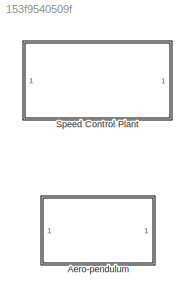
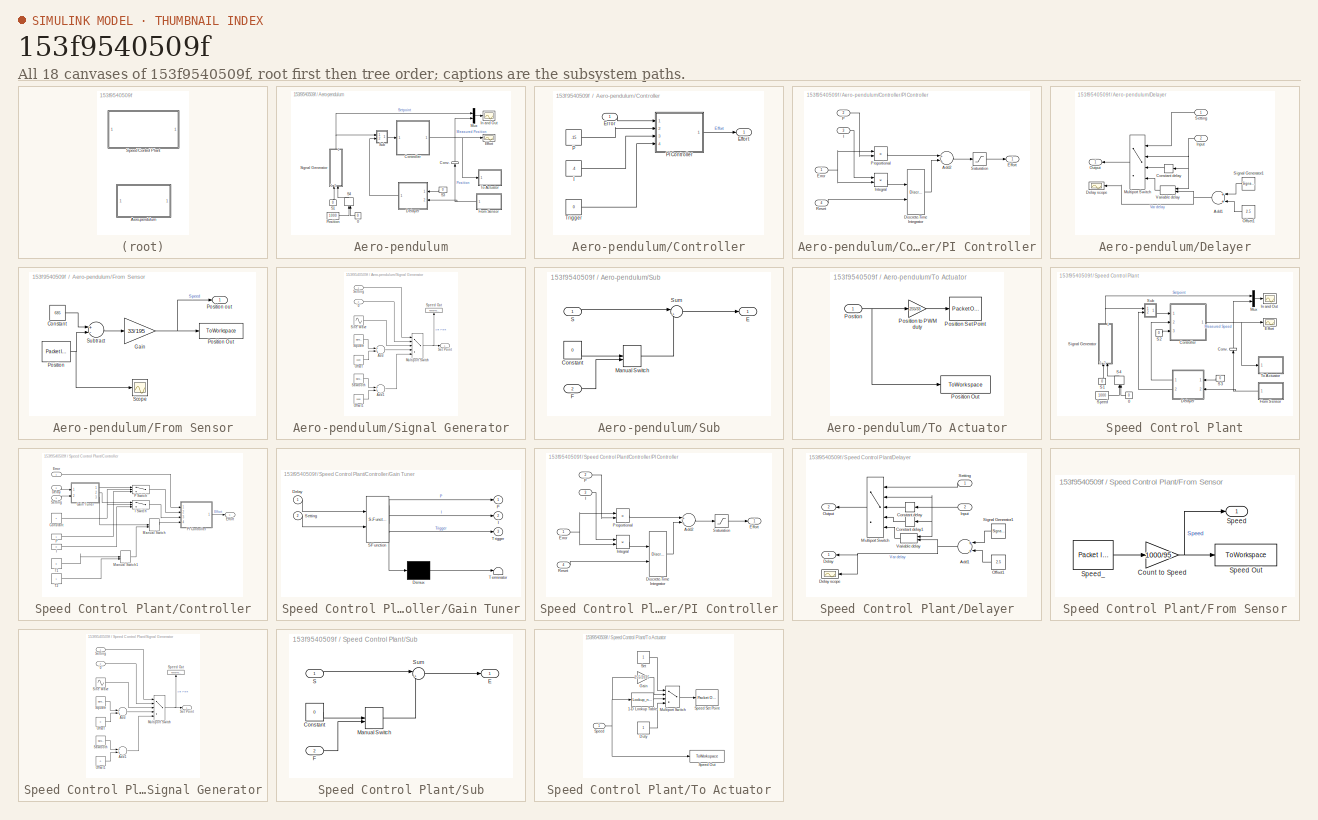
[diagram: thumbnail index - all 18 canvases of the model, root first then tree order]
MODEL slx_153f9540509f
KIND model
BLOCK [SubSystem] Aero-pendulum
  FunctionWithSeparateData = off
  MaskHideContents = off
  MinAlgLoopOccurrences = off
  Opaque = off
  Ports = []
  PropExecContextOutsideSubsystem = off
  RTWSystemCode = Auto
  RequestExecContextInheritance = off
BLOCK [Constant] Aero-pendulum/0
  Value = 0
BLOCK [SubSystem] Aero-pendulum/Controller
  FunctionWithSeparateData = off
  MaskHideContents = off
  MinAlgLoopOccurrences = off
  Opaque = off
  Ports = [1, 1]
  PropExecContextOutsideSubsystem = off
  RTWSystemCode = Auto
  RequestExecContextInheritance = off
BLOCK [Outport] Aero-pendulum/Controller/Effort
  IconDisplay = Port number
BLOCK [Inport] Aero-pendulum/Controller/Error
  IconDisplay = Port number
BLOCK [Constant] Aero-pendulum/Controller/I
  Value = .4
BLOCK [Constant] Aero-pendulum/Controller/P
  Value = .15
BLOCK [SubSystem] Aero-pendulum/Controller/PI Controller
  FunctionWithSeparateData = off
  MaskHideContents = off
  MinAlgLoopOccurrences = off
  Opaque = off
  Ports = [4, 1]
  PropExecContextOutsideSubsystem = off
  RTWSystemCode = Auto
  RequestExecContextInheritance = off
BLOCK [Sum] Aero-pendulum/Controller/PI Controller/Add2
  InputSameDT = off
  OutDataTypeStr = Inherit: Inherit via internal rule
  Ports = [2, 1]
  SampleTime = st_
  SaturateOnIntegerOverflow = off
BLOCK [DiscreteIntegrator] Aero-pendulum/Controller/PI Controller/Discrete-Time Integrator
  ExternalReset = falling
  ICPrevOutput = DiscIntNeverNeededParam
  ICPrevScaledInput = DiscIntNeverNeededParam
  Ports = [2, 1]
  SampleTime = st_
BLOCK [Outport] Aero-pendulum/Controller/PI Controller/Effort
  IconDisplay = Port number
BLOCK [Inport] Aero-pendulum/Controller/PI Controller/Error
  IconDisplay = Port number
BLOCK [Inport] Aero-pendulum/Controller/PI Controller/I
  IconDisplay = Port number
  Port = 3
BLOCK [Product] Aero-pendulum/Controller/PI Controller/Integral
  InputSameDT = off
  OutDataTypeStr = Inherit: Inherit via internal rule
  Ports = [2, 1]
  RndMeth = Floor
  SampleTime = st_
  SaturateOnIntegerOverflow = off
BLOCK [Inport] Aero-pendulum/Controller/PI Controller/P
  IconDisplay = Port number
  Port = 2
BLOCK [Product] Aero-pendulum/Controller/PI Controller/Proportional
  InputSameDT = off
  OutDataTypeStr = Inherit: Inherit via internal rule
  Ports = [2, 1]
  RndMeth = Floor
  SampleTime = st_
  SaturateOnIntegerOverflow = off
BLOCK [Inport] Aero-pendulum/Controller/PI Controller/Reset
  IconDisplay = Port number
  Port = 4
BLOCK [Saturate] Aero-pendulum/Controller/PI Controller/Saturation
  InputPortMap = u0
  LowerLimit = -33
  Ports = [1, 1]
  SampleTime = st_
  UpperLimit = 33
BLOCK [Constant] Aero-pendulum/Controller/Trigger
  Value = 0
BLOCK [DataTypeConversion] Aero-pendulum/Conv.
  RndMeth = Floor
  SaturateOnIntegerOverflow = off
BLOCK [SubSystem] Aero-pendulum/Delayer
  FunctionWithSeparateData = off
  MaskHideContents = off
  MinAlgLoopOccurrences = off
  Opaque = off
  Ports = [2, 1]
  PropExecContextOutsideSubsystem = off
  RTWSystemCode = Auto
  RequestExecContextInheritance = off
BLOCK [Sum] Aero-pendulum/Delayer/Add1
  InputSameDT = off
  OutDataTypeStr = uint8
  Ports = [2, 1]
  SaturateOnIntegerOverflow = off
BLOCK [Delay] Aero-pendulum/Delayer/Constant delay
  InitialCondition = 0
  InputPortMap = u0
  Ports = [1, 1]
  SampleTime = st_
BLOCK [Scope] Aero-pendulum/Delayer/Delay scope
  DataFormat = StructureWithTime
  Floating = off
  LimitDataPoints = off
  NumInputPorts = 1
  Ports = [1]
  SampleTime = 0
  SaveName = ScopeData2
  ShowLegends = off
  TimeRange = 100
  YMin = 0
  ZoomMode = xonly
BLOCK [Inport] Aero-pendulum/Delayer/Input
  IconDisplay = Port number
  Port = 2
BLOCK [MultiPortSwitch] Aero-pendulum/Delayer/Multiport Switch
  DataPortOrder = Zero-based contiguous
  InputSameDT = off
  Ports = [4, 1]
  SaturateOnIntegerOverflow = off
BLOCK [Constant] Aero-pendulum/Delayer/Offset1
  Value = 2.5
BLOCK [Outport] Aero-pendulum/Delayer/Output
  IconDisplay = Port number
BLOCK [Inport] Aero-pendulum/Delayer/Setting
  IconDisplay = Port number
BLOCK [SignalGenerator] Aero-pendulum/Delayer/Signal Generator1
  Amplitude = 2.5
  Frequency = .01
  Ports = [0, 1]
  WaveForm = sawtooth
BLOCK [Delay] Aero-pendulum/Delayer/Variable delay
  DelayLengthSource = Input port
  InitialCondition = 0
  InputPortMap = u0,p1
  Ports = [2, 1]
  SampleTime = st_
BLOCK [Scope] Aero-pendulum/Effort
  DataFormat = StructureWithTime
  Floating = off
  LimitDataPoints = off
  NumInputPorts = 1
  Ports = [1]
  SampleTime = 0
  SaveName = ScopeData4
  ShowLegends = off
  TimeRange = 100
  YMax = 33.5
  YMin = 33.5
  ZoomMode = xonly
BLOCK [SubSystem] Aero-pendulum/From Sensor
  FunctionWithSeparateData = off
  MaskHideContents = off
  MinAlgLoopOccurrences = off
  Opaque = off
  Ports = [0, 1]
  PropExecContextOutsideSubsystem = off
  RTWSystemCode = Auto
  RequestExecContextInheritance = off
BLOCK [Constant] Aero-pendulum/From Sensor/Constant
  Value = 685
BLOCK [Gain] Aero-pendulum/From Sensor/Gain
  Gain = 33/195
  OutDataTypeStr = Inherit: Inherit via internal rule
  ParamDataTypeStr = Inherit: Inherit via internal rule
  SaturateOnIntegerOverflow = off
BLOCK [Reference] Aero-pendulum/From Sensor/Position  REF=rtwinlib/Packet Input
  AttributesFormatString = Standard Devices\nUDP Protocol [303Dh]
  ByteOrder = 1
  DataTypes = 'int16'
  DrvAddress = 12349
  DrvName = Standard_Devices/UDP_Protocol
  DrvOptions = [3232235531 43210]
  MaxMissedTicks = 10
  PacketID = 1
  PacketSize = 2
  Ports = [0, 1]
  SampleTime = st_
  ShowError = off
  ShowMissedTicks = off
  ShowReady = off
  ShowTimestamp = off
  SourceBlock = rtwinlib/Packet Input
  SourceType = RTWin Packet Input
  YieldWhenWaiting = off
BLOCK [ToWorkspace] Aero-pendulum/From Sensor/Position Out
  MaxDataPoints = inf
  Ports = [1]
  SampleTime = st_
  SaveFormat = Structure With Time
  VariableName = position_
BLOCK [Outport] Aero-pendulum/From Sensor/Position out
  IconDisplay = Port number
BLOCK [Scope] Aero-pendulum/From Sensor/Scope
  DataFormat = StructureWithTime
  Floating = off
  NumInputPorts = 1
  Ports = [1]
  SampleTime = 0
  SaveName = ScopeData3
  ShowLegends = off
  YMax = 850
  YMin = 0
BLOCK [Sum] Aero-pendulum/From Sensor/Subtract
  InputSameDT = off
  Inputs = +-
  OutDataTypeStr = Inherit: Inherit via internal rule
  Ports = [2, 1]
  SaturateOnIntegerOverflow = off
BLOCK [Scope] Aero-pendulum/In and Out
  DataFormat = StructureWithTime
  Floating = off
  LimitDataPoints = off
  NumInputPorts = 1
  Ports = [1]
  SampleTime = 0
  SaveName = ScopeData5
  ShowLegends = on
  TimeRange = 40
  YMax = 90
  YMin = -90
  ZoomMode = xonly
BLOCK [Mux] Aero-pendulum/Mux
  DisplayOption = bar
  Inputs = 2
  Ports = [2, 1]
BLOCK [Constant] Aero-pendulum/Position
  Value = 1000
BLOCK [Constant] Aero-pendulum/S1
  Value = 0
BLOCK [Constant] Aero-pendulum/S3
  Value = 0
BLOCK [ManualSwitch] Aero-pendulum/S4
  CurrentSetting = 0
BLOCK [SubSystem] Aero-pendulum/Signal Generator
  FunctionWithSeparateData = off
  MaskHideContents = off
  MinAlgLoopOccurrences = off
  Opaque = off
  Ports = [2, 1]
  PropExecContextOutsideSubsystem = off
  RTWSystemCode = Auto
  RequestExecContextInheritance = off
BLOCK [Inport] Aero-pendulum/Signal Generator/0
  IconDisplay = Port number
  Port = 2
BLOCK [Sum] Aero-pendulum/Signal Generator/Add
  InputSameDT = off
  OutDataTypeStr = Inherit: Inherit via internal rule
  Ports = [2, 1]
  SaturateOnIntegerOverflow = off
BLOCK [Sum] Aero-pendulum/Signal Generator/Add1
  InputSameDT = off
  OutDataTypeStr = Inherit: Inherit via internal rule
  Ports = [2, 1]
  SaturateOnIntegerOverflow = off
BLOCK [MultiPortSwitch] Aero-pendulum/Signal Generator/Multiport Switch
  DataPortOrder = Zero-based contiguous
  InputSameDT = off
  Inputs = 4
  Ports = [5, 1]
  SaturateOnIntegerOverflow = off
BLOCK [Constant] Aero-pendulum/Signal Generator/Offset
  Value = 1500
BLOCK [Constant] Aero-pendulum/Signal Generator/Offset1
  Value = 1500
BLOCK [SignalGenerator] Aero-pendulum/Signal Generator/Sawtooth
  Amplitude = 400
  Frequency = .2
  Ports = [0, 1]
  WaveForm = square
BLOCK [Outport] Aero-pendulum/Signal Generator/Set Point
  IconDisplay = Port number
BLOCK [Inport] Aero-pendulum/Signal Generator/Setting
  IconDisplay = Port number
BLOCK [Sin] Aero-pendulum/Signal Generator/Sine Wave
  Amplitude = 7
  Bias = 15
  Frequency = .2
  Ports = [0, 1]
  SampleTime = 0
BLOCK [ToWorkspace] Aero-pendulum/Signal Generator/Speed Out
  MaxDataPoints = inf
  Ports = [1]
  SampleTime = st_
  SaveFormat = Structure With Time
  VariableName = setpoint_p
BLOCK [SignalGenerator] Aero-pendulum/Signal Generator/Square
  Amplitude = 400
  Frequency = .2
  Ports = [0, 1]
  WaveForm = sawtooth
BLOCK [SubSystem] Aero-pendulum/Sub
  FunctionWithSeparateData = off
  MaskHideContents = off
  MinAlgLoopOccurrences = off
  Opaque = off
  Ports = [2, 1]
  PropExecContextOutsideSubsystem = off
  RTWSystemCode = Auto
  RequestExecContextInheritance = off
BLOCK [Constant] Aero-pendulum/Sub/Constant
  Value = 0
BLOCK [Outport] Aero-pendulum/Sub/E
  IconDisplay = Port number
BLOCK [Inport] Aero-pendulum/Sub/F
  IconDisplay = Port number
  Port = 2
BLOCK [ManualSwitch] Aero-pendulum/Sub/Manual Switch
  CurrentSetting = 0
BLOCK [Inport] Aero-pendulum/Sub/S
  IconDisplay = Port number
BLOCK [Sum] Aero-pendulum/Sub/Sum
  IconShape = round
  InputSameDT = off
  Inputs = |+-
  OutDataTypeStr = Inherit: Inherit via internal rule
  Ports = [2, 1]
  SaturateOnIntegerOverflow = off
BLOCK [SubSystem] Aero-pendulum/To Actuator
  FunctionWithSeparateData = off
  MaskHideContents = off
  MinAlgLoopOccurrences = off
  Opaque = off
  Ports = [1]
  PropExecContextOutsideSubsystem = off
  RTWSystemCode = Auto
  RequestExecContextInheritance = off
BLOCK [ToWorkspace] Aero-pendulum/To Actuator/Position Out
  MaxDataPoints = inf
  Ports = [1]
  SampleTime = st_
  SaveFormat = Structure With Time
  VariableName = effort_p
BLOCK [Reference] Aero-pendulum/To Actuator/Position Set Point  REF=rtwinlib/Packet Output
  AttributesFormatString = Standard Devices\nUDP Protocol [303Fh]
  ByteOrder = 1
  DataTypes = 'int16'
  DrvAddress = 12351
  DrvName = Standard_Devices/UDP_Protocol
  DrvOptions = [3232235531 43210]
  FinalValue = []
  InitialValue = []
  MaxMissedTicks = 10
  PacketID = 1
  PacketSize = 2
  Ports = [1]
  SampleTime = st_
  ShowError = off
  ShowMissedTicks = off
  ShowReady = off
  SourceBlock = rtwinlib/Packet Output
  SourceType = RTWin Packet Output
  YieldWhenWaiting = off
BLOCK [Gain] Aero-pendulum/To Actuator/Position to PWM duty
  Gain = 255/33
  OutDataTypeStr = Inherit: Inherit via internal rule
  ParamDataTypeStr = Inherit: Inherit via internal rule
  SaturateOnIntegerOverflow = off
BLOCK [Inport] Aero-pendulum/To Actuator/Postion
  IconDisplay = Port number
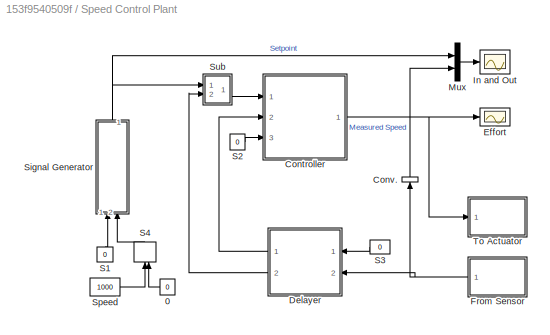
BLOCK [SubSystem] Speed Control Plant
  FunctionWithSeparateData = off
  MaskHideContents = off
  MinAlgLoopOccurrences = off
  Opaque = off
  Ports = []
  PropExecContextOutsideSubsystem = off
  RTWSystemCode = Auto
  RequestExecContextInheritance = off
BLOCK [Constant] Speed Control Plant/0
  Value = 0
BLOCK [SubSystem] Speed Control Plant/Controller
  FunctionWithSeparateData = off
  MaskHideContents = off
  MinAlgLoopOccurrences = off
  Opaque = off
  Ports = [3, 1]
  PropExecContextOutsideSubsystem = off
  RTWSystemCode = Auto
  RequestExecContextInheritance = off
BLOCK [Constant] Speed Control Plant/Controller/Constant
BLOCK [Inport] Speed Control Plant/Controller/Delay
  IconDisplay = Port number
  Port = 2
BLOCK [Outport] Speed Control Plant/Controller/Effort
  IconDisplay = Port number
BLOCK [Inport] Speed Control Plant/Controller/Error
  IconDisplay = Port number
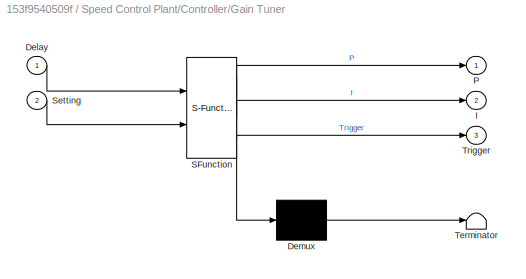
BLOCK [SubSystem] Speed Control Plant/Controller/Gain Tuner
  ErrorFcn = Stateflow.Translate.translate
  FunctionWithSeparateData = off
  MaskHideContents = off
  MinAlgLoopOccurrences = off
  Opaque = off
  PermitHierarchicalResolution = ExplicitOnly
  Ports = [2, 3]
  PropExecContextOutsideSubsystem = off
  RTWSystemCode = Auto
  RequestExecContextInheritance = off
  SFBlockType = MATLAB Function
  TreatAsAtomicUnit = on
BLOCK [Demux] Speed Control Plant/Controller/Gain Tuner/ Demux 
  Outputs = 1
  Ports = [1, 1]
BLOCK [S-Function] Speed Control Plant/Controller/Gain Tuner/ SFunction 
  EnableBusSupport = on
  FunctionName = sf_sfun
  PortCounts = [2 4]
  Ports = [2, 4]
  Tag = Stateflow S-Function main__ 2
BLOCK [Terminator] Speed Control Plant/Controller/Gain Tuner/ Terminator 
BLOCK [Inport] Speed Control Plant/Controller/Gain Tuner/Delay
  IconDisplay = Port number
BLOCK [Outport] Speed Control Plant/Controller/Gain Tuner/I
  IconDisplay = Port number
  Port = 2
BLOCK [Outport] Speed Control Plant/Controller/Gain Tuner/P
  IconDisplay = Port number
BLOCK [Inport] Speed Control Plant/Controller/Gain Tuner/Setting
  IconDisplay = Port number
  Port = 2
BLOCK [Outport] Speed Control Plant/Controller/Gain Tuner/Trigger
  IconDisplay = Port number
  Port = 3
BLOCK [Constant] Speed Control Plant/Controller/I
  Value = 0
BLOCK [Switch] Speed Control Plant/Controller/I Switch
  Criteria = u2 ~= 0
  InputSameDT = off
  SaturateOnIntegerOverflow = off
BLOCK [ManualSwitch] Speed Control Plant/Controller/Manual Switch
  CurrentSetting = 0
BLOCK [ManualSwitch] Speed Control Plant/Controller/Manual Switch1
  CurrentSetting = 0
BLOCK [Constant] Speed Control Plant/Controller/P
BLOCK [Switch] Speed Control Plant/Controller/P Switch
  Criteria = u2 ~= 0
  InputSameDT = off
  SaturateOnIntegerOverflow = off
BLOCK [SubSystem] Speed Control Plant/Controller/PI Controller
  FunctionWithSeparateData = off
  MaskHideContents = off
  MinAlgLoopOccurrences = off
  Opaque = off
  Ports = [4, 1]
  PropExecContextOutsideSubsystem = off
  RTWSystemCode = Auto
  RequestExecContextInheritance = off
BLOCK [Sum] Speed Control Plant/Controller/PI Controller/Add2
  InputSameDT = off
  OutDataTypeStr = Inherit: Inherit via internal rule
  Ports = [2, 1]
  SampleTime = .1
  SaturateOnIntegerOverflow = off
BLOCK [DiscreteIntegrator] Speed Control Plant/Controller/PI Controller/Discrete-Time Integrator
  ExternalReset = falling
  ICPrevOutput = DiscIntNeverNeededParam
  ICPrevScaledInput = DiscIntNeverNeededParam
  Ports = [2, 1]
  SampleTime = .1
BLOCK [Outport] Speed Control Plant/Controller/PI Controller/Effort
  IconDisplay = Port number
BLOCK [Inport] Speed Control Plant/Controller/PI Controller/Error
  IconDisplay = Port number
BLOCK [Inport] Speed Control Plant/Controller/PI Controller/I
  IconDisplay = Port number
  Port = 3
BLOCK [Product] Speed Control Plant/Controller/PI Controller/Integral
  InputSameDT = off
  OutDataTypeStr = Inherit: Inherit via internal rule
  Ports = [2, 1]
  RndMeth = Floor
  SampleTime = .1
  SaturateOnIntegerOverflow = off
BLOCK [Inport] Speed Control Plant/Controller/PI Controller/P
  IconDisplay = Port number
  Port = 2
BLOCK [Product] Speed Control Plant/Controller/PI Controller/Proportional
  InputSameDT = off
  OutDataTypeStr = Inherit: Inherit via internal rule
  Ports = [2, 1]
  RndMeth = Floor
  SampleTime = .1
  SaturateOnIntegerOverflow = off
BLOCK [Inport] Speed Control Plant/Controller/PI Controller/Reset
  IconDisplay = Port number
  Port = 4
BLOCK [Saturate] Speed Control Plant/Controller/PI Controller/Saturation
  InputPortMap = u0
  LowerLimit = -2035
  Ports = [1, 1]
  SampleTime = .1
  UpperLimit = 2035
BLOCK [Inport] Speed Control Plant/Controller/Setting
  IconDisplay = Port number
  Port = 3
BLOCK [Constant] Speed Control Plant/Controller/T1
  Value = 0
BLOCK [Constant] Speed Control Plant/Controller/T2
BLOCK [DataTypeConversion] Speed Control Plant/Conv.
  RndMeth = Floor
  SaturateOnIntegerOverflow = off
BLOCK [SubSystem] Speed Control Plant/Delayer
  FunctionWithSeparateData = off
  MaskHideContents = off
  MinAlgLoopOccurrences = off
  Opaque = off
  Ports = [2, 2]
  PropExecContextOutsideSubsystem = off
  RTWSystemCode = Auto
  RequestExecContextInheritance = off
BLOCK [Sum] Speed Control Plant/Delayer/Add1
  InputSameDT = off
  OutDataTypeStr = uint8
  Ports = [2, 1]
  SaturateOnIntegerOverflow = off
BLOCK [Delay] Speed Control Plant/Delayer/Constant delay
  InitialCondition = 0
  InputPortMap = u0
  Ports = [1, 1]
  SampleTime = .1
BLOCK [Delay] Speed Control Plant/Delayer/Constant delay1
  DelayLength = 4
  InitialCondition = 0
  InputPortMap = u0
  Ports = [1, 1]
  SampleTime = .1
BLOCK [Outport] Speed Control Plant/Delayer/Delay
  IconDisplay = Port number
BLOCK [Scope] Speed Control Plant/Delayer/Delay scope
  DataFormat = StructureWithTime
  Floating = off
  LimitDataPoints = off
  NumInputPorts = 1
  Ports = [1]
  SampleTime = 0
  SaveName = ScopeData2
  ShowLegends = off
  TimeRange = 100
  YMin = 0
  ZoomMode = xonly
BLOCK [Inport] Speed Control Plant/Delayer/Input
  IconDisplay = Port number
  Port = 2
BLOCK [MultiPortSwitch] Speed Control Plant/Delayer/Multiport Switch
  DataPortOrder = Zero-based contiguous
  InputSameDT = off
  Inputs = 4
  Ports = [5, 1]
  SaturateOnIntegerOverflow = off
BLOCK [Constant] Speed Control Plant/Delayer/Offset1
  Value = 2.5
BLOCK [Outport] Speed Control Plant/Delayer/Output
  IconDisplay = Port number
  Port = 2
BLOCK [Inport] Speed Control Plant/Delayer/Setting
  IconDisplay = Port number
BLOCK [SignalGenerator] Speed Control Plant/Delayer/Signal Generator1
  Amplitude = 2.5
  Frequency = .01
  Ports = [0, 1]
  WaveForm = sawtooth
BLOCK [Delay] Speed Control Plant/Delayer/Variable delay
  DelayLengthSource = Input port
  InitialCondition = 0
  InputPortMap = u0,p1
  Ports = [2, 1]
  SampleTime = .1
BLOCK [Scope] Speed Control Plant/Effort
  DataFormat = StructureWithTime
  Floating = off
  LimitDataPoints = off
  NumInputPorts = 1
  Ports = [1]
  SampleTime = 0
  ShowLegends = off
  TimeRange = 100
  YMax = -1933.25
  YMin = -2136.75
  ZoomMode = xonly
BLOCK [SubSystem] Speed Control Plant/From Sensor
  FunctionWithSeparateData = off
  MaskHideContents = off
  MinAlgLoopOccurrences = off
  Opaque = off
  Ports = [0, 1]
  PropExecContextOutsideSubsystem = off
  RTWSystemCode = Auto
  RequestExecContextInheritance = off
BLOCK [Gain] Speed Control Plant/From Sensor/Count to Speed
  Gain = 1000/95
  OutDataTypeStr = Inherit: Inherit via internal rule
  ParamDataTypeStr = Inherit: Inherit via internal rule
  SaturateOnIntegerOverflow = off
BLOCK [Outport] Speed Control Plant/From Sensor/Speed
  IconDisplay = Port number
BLOCK [ToWorkspace] Speed Control Plant/From Sensor/Speed Out
  MaxDataPoints = inf
  Ports = [1]
  SampleTime = .1
  SaveFormat = Structure With Time
  VariableName = speed_
BLOCK [Reference] Speed Control Plant/From Sensor/Speed_  REF=rtwinlib/Packet Input
  AttributesFormatString = Standard Devices\nUDP Protocol [303Bh]
  ByteOrder = 1
  DataTypes = 'int16'
  DrvAddress = 12347
  DrvName = Standard_Devices/UDP_Protocol
  DrvOptions = [3232235530 43210]
  MaxMissedTicks = 10
  PacketID = 1
  PacketSize = 2
  Ports = [0, 1]
  SampleTime = .1
  ShowError = off
  ShowMissedTicks = off
  ShowReady = off
  ShowTimestamp = off
  SourceBlock = rtwinlib/Packet Input
  SourceType = RTWin Packet Input
  YieldWhenWaiting = off
BLOCK [Scope] Speed Control Plant/In and Out
  DataFormat = StructureWithTime
  Floating = off
  LimitDataPoints = off
  NumInputPorts = 1
  Ports = [1]
  SampleTime = 0
  SaveName = ScopeData1
  ShowLegends = on
  TimeRange = 60
  YMax = 2100
  YMin = -500
  ZoomMode = xonly
BLOCK [Mux] Speed Control Plant/Mux
  DisplayOption = bar
  Inputs = 2
  Ports = [2, 1]
BLOCK [Constant] Speed Control Plant/S1
  Value = 0
BLOCK [Constant] Speed Control Plant/S2
  Value = 0
BLOCK [Constant] Speed Control Plant/S3
  Value = 0
BLOCK [ManualSwitch] Speed Control Plant/S4
  CurrentSetting = 0
BLOCK [SubSystem] Speed Control Plant/Signal Generator
  FunctionWithSeparateData = off
  MaskHideContents = off
  MinAlgLoopOccurrences = off
  Opaque = off
  Ports = [2, 1]
  PropExecContextOutsideSubsystem = off
  RTWSystemCode = Auto
  RequestExecContextInheritance = off
BLOCK [Inport] Speed Control Plant/Signal Generator/0
  IconDisplay = Port number
  Port = 2
BLOCK [Sum] Speed Control Plant/Signal Generator/Add
  InputSameDT = off
  OutDataTypeStr = Inherit: Inherit via internal rule
  Ports = [2, 1]
  SaturateOnIntegerOverflow = off
BLOCK [Sum] Speed Control Plant/Signal Generator/Add1
  InputSameDT = off
  OutDataTypeStr = Inherit: Inherit via internal rule
  Ports = [2, 1]
  SaturateOnIntegerOverflow = off
BLOCK [MultiPortSwitch] Speed Control Plant/Signal Generator/Multiport Switch
  DataPortOrder = Zero-based contiguous
  InputSameDT = off
  Inputs = 4
  Ports = [5, 1]
  SaturateOnIntegerOverflow = off
BLOCK [Constant] Speed Control Plant/Signal Generator/Offset
  Value = 0
BLOCK [Constant] Speed Control Plant/Signal Generator/Offset1
  Value = 0
BLOCK [SignalGenerator] Speed Control Plant/Signal Generator/Sawtooth
  Amplitude = 400
  Frequency = .2
  Ports = [0, 1]
  WaveForm = square
BLOCK [Outport] Speed Control Plant/Signal Generator/Set Point
  IconDisplay = Port number
BLOCK [Inport] Speed Control Plant/Signal Generator/Setting
  IconDisplay = Port number
BLOCK [Sin] Speed Control Plant/Signal Generator/Sine Wave
  Amplitude = 400
  Bias = 1000
  Frequency = .2
  Ports = [0, 1]
  SampleTime = 0
BLOCK [ToWorkspace] Speed Control Plant/Signal Generator/Speed Out
  MaxDataPoints = inf
  Ports = [1]
  SampleTime = .1
  SaveFormat = Structure With Time
  VariableName = setpoint_
BLOCK [SignalGenerator] Speed Control Plant/Signal Generator/Square
  Amplitude = 400
  Frequency = .2
  Ports = [0, 1]
  WaveForm = sawtooth
BLOCK [Constant] Speed Control Plant/Speed
  Value = 1000
BLOCK [SubSystem] Speed Control Plant/Sub
  FunctionWithSeparateData = off
  MaskHideContents = off
  MinAlgLoopOccurrences = off
  Opaque = off
  Ports = [2, 1]
  PropExecContextOutsideSubsystem = off
  RTWSystemCode = Auto
  RequestExecContextInheritance = off
BLOCK [Constant] Speed Control Plant/Sub/Constant
  Value = 0
BLOCK [Outport] Speed Control Plant/Sub/E
  IconDisplay = Port number
BLOCK [Inport] Speed Control Plant/Sub/F
  IconDisplay = Port number
  Port = 2
BLOCK [ManualSwitch] Speed Control Plant/Sub/Manual Switch
  CurrentSetting = 0
BLOCK [Inport] Speed Control Plant/Sub/S
  IconDisplay = Port number
BLOCK [Sum] Speed Control Plant/Sub/Sum
  IconShape = round
  InputSameDT = off
  Inputs = |+-
  OutDataTypeStr = Inherit: Inherit via internal rule
  Ports = [2, 1]
  SaturateOnIntegerOverflow = off
BLOCK [SubSystem] Speed Control Plant/To Actuator
  FunctionWithSeparateData = off
  MaskHideContents = off
  MinAlgLoopOccurrences = off
  Opaque = off
  Ports = [1]
  PropExecContextOutsideSubsystem = off
  RTWSystemCode = Auto
  RequestExecContextInheritance = off
BLOCK [Lookup_n-D] Speed Control Plant/To Actuator/1-D Lookup Table
  BreakpointsForDimension1 = [-2035 -1950 -1770 -1585 -1405 -1220 -1045 -870 -690 -500 -320 -230 -140 -60 -0.1 0 60 140 230 320 500 690 870 1045 1220 1405 1585 1770 1950 2035]
  ExtrapMethod = Clip
  InternalRulePriority = Speed
  NumberOfTableDimensions = 1
  Ports = [1, 1]
  RndMeth = Simplest
  Table = [-255 -240 -220 -200 -180 -160 -140 -120 -100 -80 -60 -50 -40 -30 -25 25 30 40 50 60 80 100 120 140 160 180 200 220 240 255]
BLOCK [Constant] Speed Control Plant/To Actuator/Duty
BLOCK [Gain] Speed Control Plant/To Actuator/Gain
  Gain = 255/2035
  OutDataTypeStr = Inherit: Inherit via internal rule
  ParamDataTypeStr = Inherit: Inherit via internal rule
  SaturateOnIntegerOverflow = off
BLOCK [MultiPortSwitch] Speed Control Plant/To Actuator/Multiport Switch
  DataPortOrder = Zero-based contiguous
  InputSameDT = off
  Ports = [4, 1]
  SaturateOnIntegerOverflow = off
BLOCK [Constant] Speed Control Plant/To Actuator/Set
BLOCK [Inport] Speed Control Plant/To Actuator/Speed
  IconDisplay = Port number
BLOCK [ToWorkspace] Speed Control Plant/To Actuator/Speed Out
  MaxDataPoints = inf
  Ports = [1]
  SampleTime = .1
  SaveFormat = Structure With Time
  VariableName = effort_
BLOCK [Reference] Speed Control Plant/To Actuator/Speed Set Point  REF=rtwinlib/Packet Output
  AttributesFormatString = Standard Devices\nUDP Protocol [3039h]
  ByteOrder = 1
  DataTypes = 'int16'
  DrvAddress = 12345
  DrvName = Standard_Devices/UDP_Protocol
  DrvOptions = [3232235530 43210]
  FinalValue = []
  InitialValue = []
  MaxMissedTicks = 10
  PacketID = 1
  PacketSize = 2
  Ports = [1]
  SampleTime = .1
  ShowError = off
  ShowMissedTicks = off
  ShowReady = off
  SourceBlock = rtwinlib/Packet Output
  SourceType = RTWin Packet Output
  YieldWhenWaiting = off
LINE Aero-pendulum/0:1 -> Aero-pendulum/S4:2
LINE Aero-pendulum/Controller/Error:1 -> Aero-pendulum/Controller/PI Controller:1
LINE Aero-pendulum/Controller/I:1 -> Aero-pendulum/Controller/PI Controller:3
LINE Aero-pendulum/Controller/P:1 -> Aero-pendulum/Controller/PI Controller:2
LINE Aero-pendulum/Controller/PI Controller/Add2:1 -> Aero-pendulum/Controller/PI Controller/Saturation:1
LINE Aero-pendulum/Controller/PI Controller/Discrete-Time Integrator:1 -> Aero-pendulum/Controller/PI Controller/Add2:2
NET Aero-pendulum/Controller/PI Controller/Error:1 -> Aero-pendulum/Controller/PI Controller/Integral:2, Aero-pendulum/Controller/PI Controller/Proportional:1
LINE Aero-pendulum/Controller/PI Controller/I:1 -> Aero-pendulum/Controller/PI Controller/Integral:1
LINE Aero-pendulum/Controller/PI Controller/Integral:1 -> Aero-pendulum/Controller/PI Controller/Discrete-Time Integrator:1
LINE Aero-pendulum/Controller/PI Controller/P:1 -> Aero-pendulum/Controller/PI Controller/Proportional:2
LINE Aero-pendulum/Controller/PI Controller/Proportional:1 -> Aero-pendulum/Controller/PI Controller/Add2:1
LINE Aero-pendulum/Controller/PI Controller/Reset:1 -> Aero-pendulum/Controller/PI Controller/Discrete-Time Integrator:2
LINE Aero-pendulum/Controller/PI Controller/Saturation:1 -> Aero-pendulum/Controller/PI Controller/Effort:1
LINE Aero-pendulum/Controller/PI Controller:1 -> Aero-pendulum/Controller/Effort:1
LINE Aero-pendulum/Controller/Trigger:1 -> Aero-pendulum/Controller/PI Controller:4
NET Aero-pendulum/Controller:1 -> Aero-pendulum/Effort:1, Aero-pendulum/To Actuator:1
LINE Aero-pendulum/Conv.:1 -> Aero-pendulum/Mux:2
NET Aero-pendulum/Delayer/Add1:1 -> Aero-pendulum/Delayer/Delay scope:1, Aero-pendulum/Delayer/Variable delay:2
LINE Aero-pendulum/Delayer/Constant delay:1 -> Aero-pendulum/Delayer/Multiport Switch:3
NET Aero-pendulum/Delayer/Input:1 -> Aero-pendulum/Delayer/Constant delay:1, Aero-pendulum/Delayer/Multiport Switch:2, Aero-pendulum/Delayer/Variable delay:1
LINE Aero-pendulum/Delayer/Multiport Switch:1 -> Aero-pendulum/Delayer/Output:1
LINE Aero-pendulum/Delayer/Offset1:1 -> Aero-pendulum/Delayer/Add1:2
LINE Aero-pendulum/Delayer/Setting:1 -> Aero-pendulum/Delayer/Multiport Switch:1
LINE Aero-pendulum/Delayer/Signal Generator1:1 -> Aero-pendulum/Delayer/Add1:1
LINE Aero-pendulum/Delayer/Variable delay:1 -> Aero-pendulum/Delayer/Multiport Switch:4
LINE Aero-pendulum/Delayer:1 -> Aero-pendulum/Sub:2
LINE Aero-pendulum/From Sensor/Constant:1 -> Aero-pendulum/From Sensor/Subtract:1
NET Aero-pendulum/From Sensor/Gain:1 -> Aero-pendulum/From Sensor/Position Out:1, Aero-pendulum/From Sensor/Position out:1
NET Aero-pendulum/From Sensor/Position:1 -> Aero-pendulum/From Sensor/Scope:1, Aero-pendulum/From Sensor/Subtract:2
LINE Aero-pendulum/From Sensor/Subtract:1 -> Aero-pendulum/From Sensor/Gain:1
NET Aero-pendulum/From Sensor:1 -> Aero-pendulum/Conv.:1, Aero-pendulum/Delayer:2
LINE Aero-pendulum/Mux:1 -> Aero-pendulum/In and Out:1
LINE Aero-pendulum/Position:1 -> Aero-pendulum/S4:1
LINE Aero-pendulum/S1:1 -> Aero-pendulum/Signal Generator:1
LINE Aero-pendulum/S3:1 -> Aero-pendulum/Delayer:1
LINE Aero-pendulum/S4:1 -> Aero-pendulum/Signal Generator:2
LINE Aero-pendulum/Signal Generator/0:1 -> Aero-pendulum/Signal Generator/Multiport Switch:2
LINE Aero-pendulum/Signal Generator/Add1:1 -> Aero-pendulum/Signal Generator/Multiport Switch:5
LINE Aero-pendulum/Signal Generator/Add:1 -> Aero-pendulum/Signal Generator/Multiport Switch:4
NET Aero-pendulum/Signal Generator/Multiport Switch:1 -> Aero-pendulum/Signal Generator/Set Point:1, Aero-pendulum/Signal Generator/Speed Out:1
LINE Aero-pendulum/Signal Generator/Offset1:1 -> Aero-pendulum/Signal Generator/Add1:2
LINE Aero-pendulum/Signal Generator/Offset:1 -> Aero-pendulum/Signal Generator/Add:2
LINE Aero-pendulum/Signal Generator/Sawtooth:1 -> Aero-pendulum/Signal Generator/Add1:1
LINE Aero-pendulum/Signal Generator/Setting:1 -> Aero-pendulum/Signal Generator/Multiport Switch:1
LINE Aero-pendulum/Signal Generator/Sine Wave:1 -> Aero-pendulum/Signal Generator/Multiport Switch:3
LINE Aero-pendulum/Signal Generator/Square:1 -> Aero-pendulum/Signal Generator/Add:1
NET Aero-pendulum/Signal Generator:1 -> Aero-pendulum/Mux:1, Aero-pendulum/Sub:1
LINE Aero-pendulum/Sub/Constant:1 -> Aero-pendulum/Sub/Manual Switch:1
LINE Aero-pendulum/Sub/F:1 -> Aero-pendulum/Sub/Manual Switch:2
LINE Aero-pendulum/Sub/Manual Switch:1 -> Aero-pendulum/Sub/Sum:2
LINE Aero-pendulum/Sub/S:1 -> Aero-pendulum/Sub/Sum:1
LINE Aero-pendulum/Sub/Sum:1 -> Aero-pendulum/Sub/E:1
LINE Aero-pendulum/Sub:1 -> Aero-pendulum/Controller:1
LINE Aero-pendulum/To Actuator/Position to PWM duty:1 -> Aero-pendulum/To Actuator/Position Set Point:1
NET Aero-pendulum/To Actuator/Postion:1 -> Aero-pendulum/To Actuator/Position Out:1, Aero-pendulum/To Actuator/Position to PWM duty:1
LINE Speed Control Plant/0:1 -> Speed Control Plant/S4:2
NET Speed Control Plant/Controller/Constant:1 -> Speed Control Plant/Controller/I Switch:2, Speed Control Plant/Controller/P Switch:2
LINE Speed Control Plant/Controller/Delay:1 -> Speed Control Plant/Controller/Gain Tuner:1
LINE Speed Control Plant/Controller/Error:1 -> Speed Control Plant/Controller/PI Controller:1
LINE Speed Control Plant/Controller/Gain Tuner:1 -> Speed Control Plant/Controller/P Switch:1
LINE Speed Control Plant/Controller/Gain Tuner:2 -> Speed Control Plant/Controller/I Switch:1
LINE Speed Control Plant/Controller/Gain Tuner:3 -> Speed Control Plant/Controller/Manual Switch:1
LINE Speed Control Plant/Controller/I Switch:1 -> Speed Control Plant/Controller/PI Controller:3
LINE Speed Control Plant/Controller/I:1 -> Speed Control Plant/Controller/I Switch:3
LINE Speed Control Plant/Controller/Manual Switch1:1 -> Speed Control Plant/Controller/Manual Switch:2
LINE Speed Control Plant/Controller/Manual Switch:1 -> Speed Control Plant/Controller/PI Controller:4
LINE Speed Control Plant/Controller/P Switch:1 -> Speed Control Plant/Controller/PI Controller:2
LINE Speed Control Plant/Controller/P:1 -> Speed Control Plant/Controller/P Switch:3
LINE Speed Control Plant/Controller/PI Controller/Add2:1 -> Speed Control Plant/Controller/PI Controller/Saturation:1
LINE Speed Control Plant/Controller/PI Controller/Discrete-Time Integrator:1 -> Speed Control Plant/Controller/PI Controller/Add2:2
NET Speed Control Plant/Controller/PI Controller/Error:1 -> Speed Control Plant/Controller/PI Controller/Integral:2, Speed Control Plant/Controller/PI Controller/Proportional:1
LINE Speed Control Plant/Controller/PI Controller/I:1 -> Speed Control Plant/Controller/PI Controller/Integral:1
LINE Speed Control Plant/Controller/PI Controller/Integral:1 -> Speed Control Plant/Controller/PI Controller/Discrete-Time Integrator:1
LINE Speed Control Plant/Controller/PI Controller/P:1 -> Speed Control Plant/Controller/PI Controller/Proportional:2
LINE Speed Control Plant/Controller/PI Controller/Proportional:1 -> Speed Control Plant/Controller/PI Controller/Add2:1
LINE Speed Control Plant/Controller/PI Controller/Reset:1 -> Speed Control Plant/Controller/PI Controller/Discrete-Time Integrator:2
LINE Speed Control Plant/Controller/PI Controller/Saturation:1 -> Speed Control Plant/Controller/PI Controller/Effort:1
LINE Speed Control Plant/Controller/PI Controller:1 -> Speed Control Plant/Controller/Effort:1
LINE Speed Control Plant/Controller/Setting:1 -> Speed Control Plant/Controller/Gain Tuner:2
LINE Speed Control Plant/Controller/T1:1 -> Speed Control Plant/Controller/Manual Switch1:1
LINE Speed Control Plant/Controller/T2:1 -> Speed Control Plant/Controller/Manual Switch1:2
NET Speed Control Plant/Controller:1 -> Speed Control Plant/Effort:1, Speed Control Plant/To Actuator:1
LINE Speed Control Plant/Conv.:1 -> Speed Control Plant/Mux:2
NET Speed Control Plant/Delayer/Add1:1 -> Speed Control Plant/Delayer/Delay scope:1, Speed Control Plant/Delayer/Delay:1, Speed Control Plant/Delayer/Variable delay:2
LINE Speed Control Plant/Delayer/Constant delay1:1 -> Speed Control Plant/Delayer/Multiport Switch:4
LINE Speed Control Plant/Delayer/Constant delay:1 -> Speed Control Plant/Delayer/Multiport Switch:3
NET Speed Control Plant/Delayer/Input:1 -> Speed Control Plant/Delayer/Constant delay1:1, Speed Control Plant/Delayer/Constant delay:1, Speed Control Plant/Delayer/Multiport Switch:2, Speed Control Plant/Delayer/Variable delay:1
LINE Speed Control Plant/Delayer/Multiport Switch:1 -> Speed Control Plant/Delayer/Output:1
LINE Speed Control Plant/Delayer/Offset1:1 -> Speed Control Plant/Delayer/Add1:2
LINE Speed Control Plant/Delayer/Setting:1 -> Speed Control Plant/Delayer/Multiport Switch:1
LINE Speed Control Plant/Delayer/Signal Generator1:1 -> Speed Control Plant/Delayer/Add1:1
LINE Speed Control Plant/Delayer/Variable delay:1 -> Speed Control Plant/Delayer/Multiport Switch:5
LINE Speed Control Plant/Delayer:1 -> Speed Control Plant/Controller:2
LINE Speed Control Plant/Delayer:2 -> Speed Control Plant/Sub:2
NET Speed Control Plant/From Sensor/Count to Speed:1 -> Speed Control Plant/From Sensor/Speed Out:1, Speed Control Plant/From Sensor/Speed:1
LINE Speed Control Plant/From Sensor/Speed_:1 -> Speed Control Plant/From Sensor/Count to Speed:1
NET Speed Control Plant/From Sensor:1 -> Speed Control Plant/Conv.:1, Speed Control Plant/Delayer:2
LINE Speed Control Plant/Mux:1 -> Speed Control Plant/In and Out:1
LINE Speed Control Plant/S1:1 -> Speed Control Plant/Signal Generator:1
LINE Speed Control Plant/S2:1 -> Speed Control Plant/Controller:3
LINE Speed Control Plant/S3:1 -> Speed Control Plant/Delayer:1
LINE Speed Control Plant/S4:1 -> Speed Control Plant/Signal Generator:2
LINE Speed Control Plant/Signal Generator/0:1 -> Speed Control Plant/Signal Generator/Multiport Switch:2
LINE Speed Control Plant/Signal Generator/Add1:1 -> Speed Control Plant/Signal Generator/Multiport Switch:5
LINE Speed Control Plant/Signal Generator/Add:1 -> Speed Control Plant/Signal Generator/Multiport Switch:4
NET Speed Control Plant/Signal Generator/Multiport Switch:1 -> Speed Control Plant/Signal Generator/Set Point:1, Speed Control Plant/Signal Generator/Speed Out:1
LINE Speed Control Plant/Signal Generator/Offset1:1 -> Speed Control Plant/Signal Generator/Add1:2
LINE Speed Control Plant/Signal Generator/Offset:1 -> Speed Control Plant/Signal Generator/Add:2
LINE Speed Control Plant/Signal Generator/Sawtooth:1 -> Speed Control Plant/Signal Generator/Add1:1
LINE Speed Control Plant/Signal Generator/Setting:1 -> Speed Control Plant/Signal Generator/Multiport Switch:1
LINE Speed Control Plant/Signal Generator/Sine Wave:1 -> Speed Control Plant/Signal Generator/Multiport Switch:3
LINE Speed Control Plant/Signal Generator/Square:1 -> Speed Control Plant/Signal Generator/Add:1
NET Speed Control Plant/Signal Generator:1 -> Speed Control Plant/Mux:1, Speed Control Plant/Sub:1
LINE Speed Control Plant/Speed:1 -> Speed Control Plant/S4:1
LINE Speed Control Plant/Sub/Constant:1 -> Speed Control Plant/Sub/Manual Switch:1
LINE Speed Control Plant/Sub/F:1 -> Speed Control Plant/Sub/Manual Switch:2
LINE Speed Control Plant/Sub/Manual Switch:1 -> Speed Control Plant/Sub/Sum:2
LINE Speed Control Plant/Sub/S:1 -> Speed Control Plant/Sub/Sum:1
LINE Speed Control Plant/Sub/Sum:1 -> Speed Control Plant/Sub/E:1
LINE Speed Control Plant/Sub:1 -> Speed Control Plant/Controller:1
LINE Speed Control Plant/To Actuator/1-D Lookup Table:1 -> Speed Control Plant/To Actuator/Multiport Switch:3
LINE Speed Control Plant/To Actuator/Duty:1 -> Speed Control Plant/To Actuator/Multiport Switch:4
LINE Speed Control Plant/To Actuator/Gain:1 -> Speed Control Plant/To Actuator/Multiport Switch:2
LINE Speed Control Plant/To Actuator/Multiport Switch:1 -> Speed Control Plant/To Actuator/Speed Set Point:1
LINE Speed Control Plant/To Actuator/Set:1 -> Speed Control Plant/To Actuator/Multiport Switch:1
NET Speed Control Plant/To Actuator/Speed:1 -> Speed Control Plant/To Actuator/1-D Lookup Table:1, Speed Control Plant/To Actuator/Gain:1, Speed Control Plant/To Actuator/Speed Out:1
note: NET lines group one-source signal fan-out (src -> all destinations, sorted); 1:1 wires keep LINE
